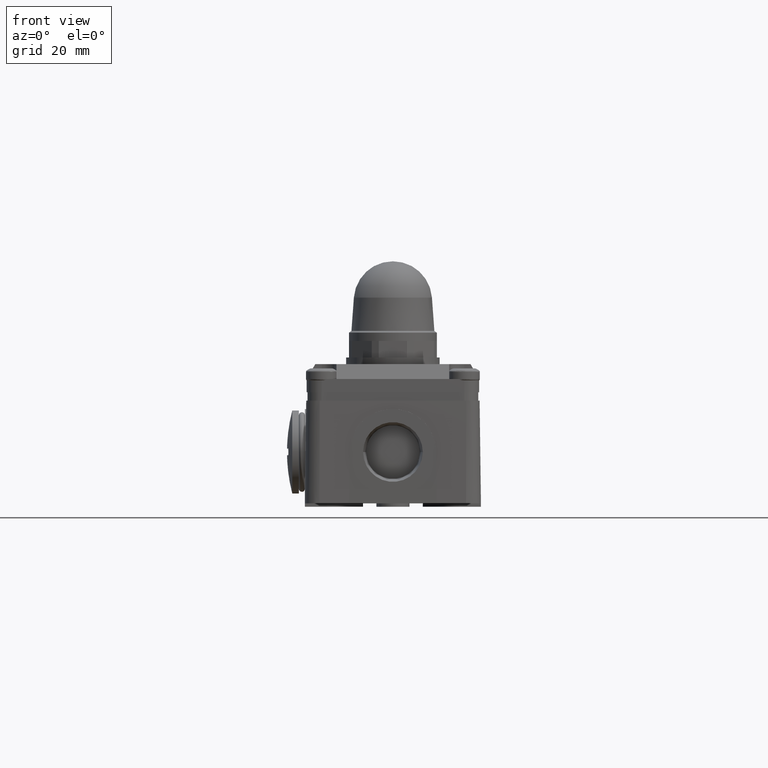
[diagram: clean part render]
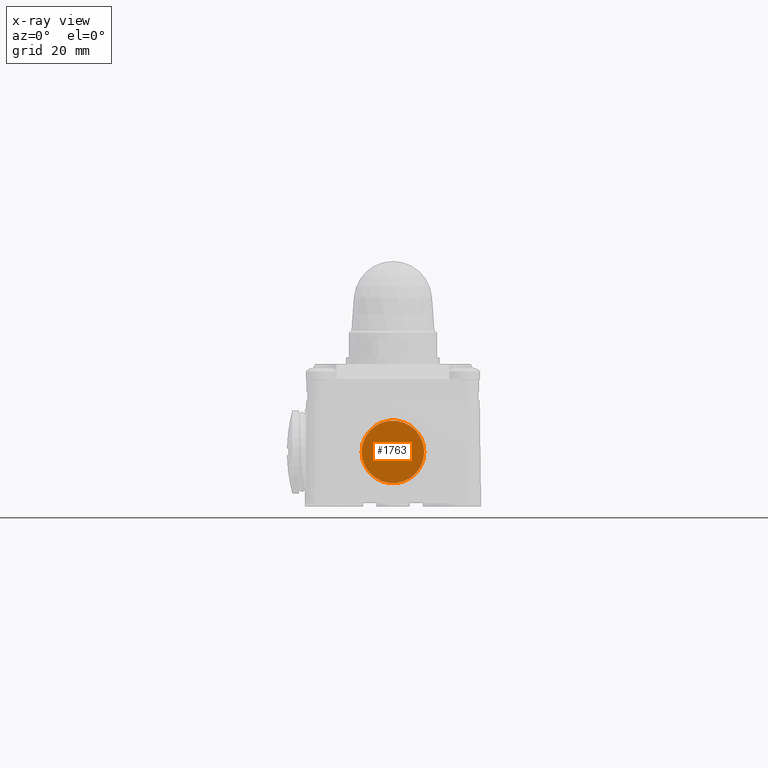
[diagram: x-ray — body ghosted, one internal face saturated and labeled with its STEP entity id]
A machine part, front view, then the same camera in x-ray: the body is ghosted and one INTERNAL B-rep face — a face not visible from any outside direction — is saturated and labeled: STEP entity #1763.
In plain terms, the highlighted planar face has unit normal (0, -1, 0).
Its self-contained STEP definition (entity closure, byte-faithful):
#1763=ADVANCED_FACE('',(#3552),#3553,.T.);
#3552=FACE_OUTER_BOUND('',#5329,.T.);
#3553=PLANE('',#5330);
#5329=EDGE_LOOP('',(#10433,#10434));
#5330=AXIS2_PLACEMENT_3D('',#10435,#10436,#10437);
#10433=ORIENTED_EDGE('',*,*,#12498,.T.);
#10434=ORIENTED_EDGE('',*,*,#12494,.T.);
#10435=CARTESIAN_POINT('',(31.9104298117,12.5979,16.5));
#10436=DIRECTION('',(0.0,-1.0,0.0));
#10437=DIRECTION('',(0.0,0.0,1.0));
#12494=EDGE_CURVE('',#15401,#15399,#15402,.T.);
#12498=EDGE_CURVE('',#15399,#15401,#15406,.T.);
#15399=VERTEX_POINT('',#19789);
#15401=VERTEX_POINT('',#19792);
#15402=CIRCLE('',#19793,9.45);
#15406=CIRCLE('',#19798,9.45);
#19789=CARTESIAN_POINT('',(41.3604298117,12.5979,16.5));
#19792=CARTESIAN_POINT('',(22.4604298117,12.5979,16.5));
#19793=AXIS2_PLACEMENT_3D('',#22408,#22409,#22410);
#19798=AXIS2_PLACEMENT_3D('',#22415,#22416,#22417);
#22408=CARTESIAN_POINT('',(31.9104298117,12.5979,16.5));
#22409=DIRECTION('',(0.0,-1.0,0.0));
#22410=DIRECTION('',(1.0,0.0,-2.99929824045753E-016));
#22415=CARTESIAN_POINT('',(31.9104298117,12.5979,16.5));
#22416=DIRECTION('',(0.0,-1.0,0.0));
#22417=DIRECTION('',(1.0,0.0,-2.99929824045753E-016));